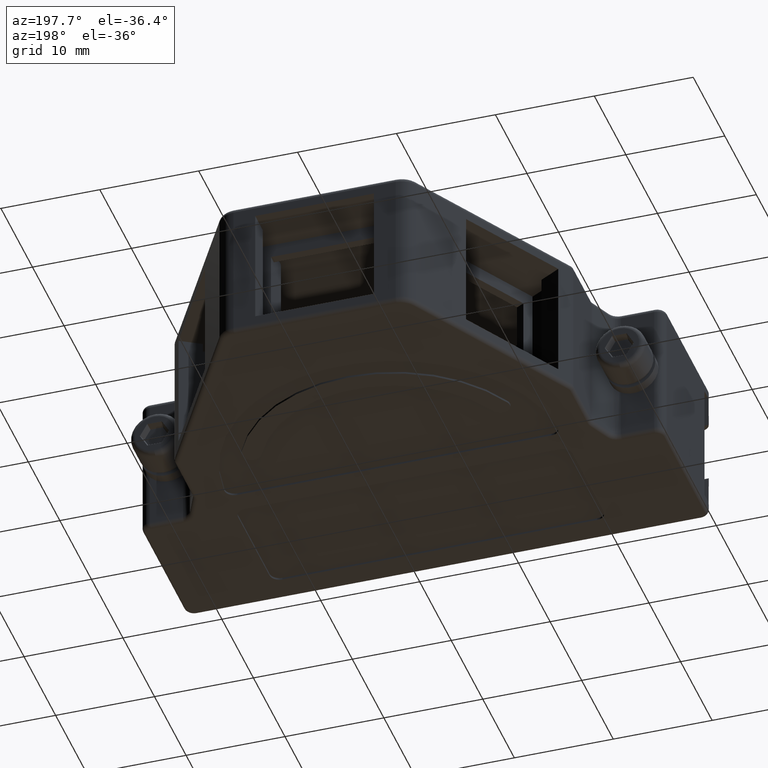
[diagram: clean part render]
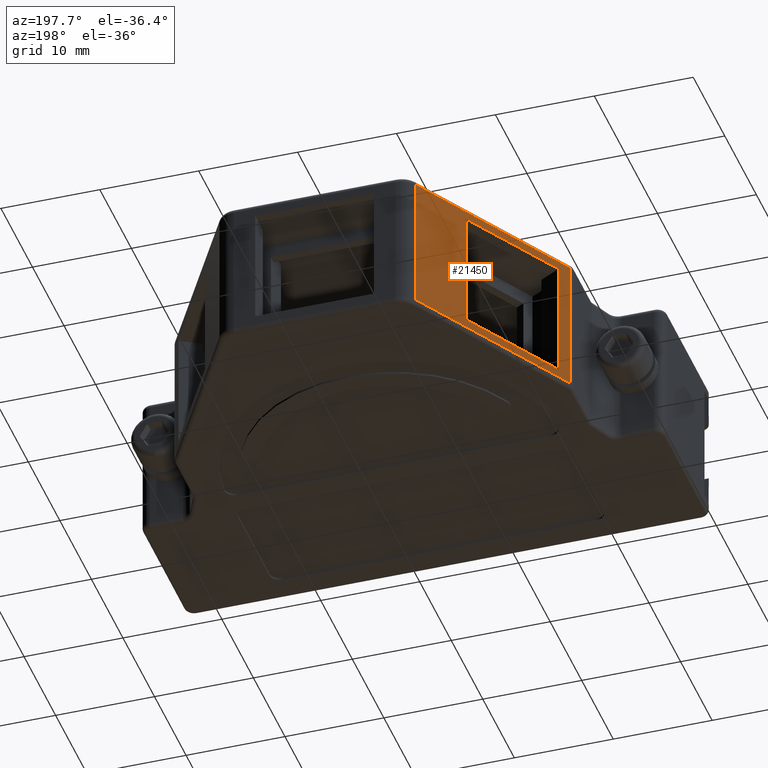
[diagram: same view with one face highlighted and labeled with its STEP entity id]
A machine part, auxiliary view. The second image highlights one B-rep face of the part: STEP entity #21450.
In plain terms, the highlighted planar face has unit normal (-0.866, 0.5, 0).
Its self-contained STEP definition (entity closure, byte-faithful):
#6520=CARTESIAN_POINT('',(40.0690997646564,41.05,-34.3));
#6530=VERTEX_POINT('',#6520);
#6560=CARTESIAN_POINT('',(16.5132087817196,0.25,-34.3));
#6570=DIRECTION('',(0.5,0.866025403784439,0.));
#6580=VECTOR('',#6570,1.);
#6590=LINE('',#6560,#6580);
#6600=CARTESIAN_POINT('',(29.9839745962156,23.5820508075689,-34.3));
#6610=VERTEX_POINT('',#6600);
#6620=EDGE_CURVE('',#6610,#6530,#6590,.T.);
#20810=CARTESIAN_POINT('',(40.646450033846,42.05,-27.4));
#20820=DIRECTION('',(-0.866025403784439,0.5,0.));
#20830=DIRECTION('',(-0.5,-0.866025403784439,0.));
#20840=AXIS2_PLACEMENT_3D('',#20810,#20820,#20830);
#20850=PLANE('',#20840);
#20860=CARTESIAN_POINT('',(16.3688712144222,0.,-33.4));
#20870=DIRECTION('',(0.5,0.866025403784439,0.));
#20880=VECTOR('',#20870,1.);
#20890=LINE('',#20860,#20880);
#20900=CARTESIAN_POINT('',(30.8,24.9954482671904,-33.4));
#20910=VERTEX_POINT('',#20900);
#20920=CARTESIAN_POINT('',(36.8,35.3877531126037,-33.4));
#20930=VERTEX_POINT('',#20920);
#20940=EDGE_CURVE('',#20910,#20930,#20890,.T.);
#20950=ORIENTED_EDGE('',*,*,#20940,.T.);
#20960=CARTESIAN_POINT('',(30.8,24.9954482671904,0.));
#20970=DIRECTION('',(0.,0.,-1.));
#20980=VECTOR('',#20970,1.);
#20990=LINE('',#20960,#20980);
#21000=CARTESIAN_POINT('',(30.8,24.9954482671904,-21.4));
#21010=VERTEX_POINT('',#21000);
#21020=EDGE_CURVE('',#21010,#20910,#20990,.T.);
#21030=ORIENTED_EDGE('',*,*,#21020,.T.);
#21040=CARTESIAN_POINT('',(16.3688712144222,0.,-21.4));
#21050=DIRECTION('',(0.5,0.866025403784439,0.));
#21060=VECTOR('',#21050,1.);
#21070=LINE('',#21040,#21060);
#21080=CARTESIAN_POINT('',(36.8,35.3877531126037,-21.4));
#21090=VERTEX_POINT('',#21080);
#21100=EDGE_CURVE('',#21010,#21090,#21070,.T.);
#21110=ORIENTED_EDGE('',*,*,#21100,.F.);
#21120=CARTESIAN_POINT('',(36.8,35.3877531126037,0.));
#21130=DIRECTION('',(0.,0.,1.));
#21140=VECTOR('',#21130,1.);
#21150=LINE('',#21120,#21140);
#21160=EDGE_CURVE('',#20930,#21090,#21150,.T.);
#21170=ORIENTED_EDGE('',*,*,#21160,.T.);
#21180=EDGE_LOOP('',(#21170,#21110,#21030,#20950));
#21190=FACE_BOUND('',#21180,.T.);
#21200=CARTESIAN_POINT('',(29.9839745962156,23.5820508075689,0.));
#21210=DIRECTION('',(0.,0.,-1.));
#21220=VECTOR('',#21210,1.);
#21230=LINE('',#21200,#21220);
#21240=CARTESIAN_POINT('',(29.9839745962156,23.5820508075689,-20.5));
#21250=VERTEX_POINT('',#21240);
#21260=EDGE_CURVE('',#21250,#6610,#21230,.T.);
#21270=ORIENTED_EDGE('',*,*,#21260,.F.);
#21280=ORIENTED_EDGE('',*,*,#6620,.F.);
#21290=CARTESIAN_POINT('',(40.0690997646564,41.05,0.));
#21300=DIRECTION('',(0.,0.,-1.));
#21310=VECTOR('',#21300,1.);
#21320=LINE('',#21290,#21310);
#21330=CARTESIAN_POINT('',(40.0690997646564,41.05,-20.5));
#21340=VERTEX_POINT('',#21330);
#21350=EDGE_CURVE('',#21340,#6530,#21320,.T.);
#21360=ORIENTED_EDGE('',*,*,#21350,.T.);
#21370=CARTESIAN_POINT('',(16.5132087817196,0.25,-20.5));
#21380=DIRECTION('',(0.5,0.866025403784439,0.));
#21390=VECTOR('',#21380,1.);
#21400=LINE('',#21370,#21390);
#21410=EDGE_CURVE('',#21250,#21340,#21400,.T.);
#21420=ORIENTED_EDGE('',*,*,#21410,.T.);
#21430=EDGE_LOOP('',(#21420,#21360,#21280,#21270));
#21440=FACE_OUTER_BOUND('',#21430,.T.);
#21450=ADVANCED_FACE('',(#21190,#21440),#20850,.T.);